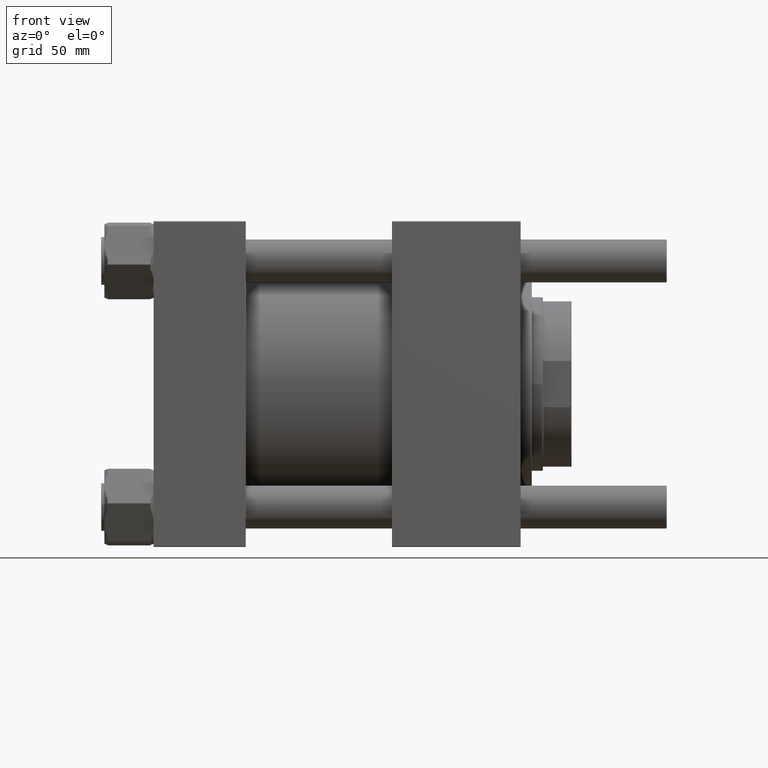
[diagram: clean part render]
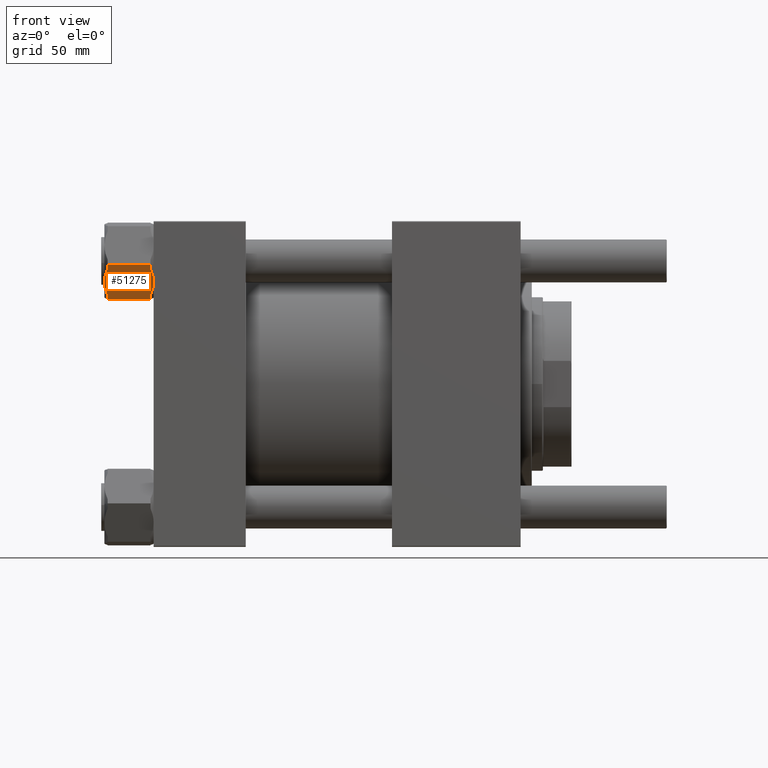
[diagram: same view with one face highlighted and labeled with its STEP entity id]
A machine part, front view. The second image highlights one B-rep face of the part: STEP entity #51275.
In plain terms, the highlighted planar face has unit normal (-0, 0.8198, 0.5726).
Its self-contained STEP definition (entity closure, byte-faithful):
#153 = LINE ( 'NONE', #8552, #7084 ) ;
#231 = ORIENTED_EDGE ( 'NONE', *, *, #31329, .F. ) ;
#1495 = LINE ( 'NONE', #32195, #11988 ) ;
#2269 = VECTOR ( 'NONE', #38551, 1000.000000000000000 ) ;
#2427 = ORIENTED_EDGE ( 'NONE', *, *, #47066, .F. ) ;
#3409 = CARTESIAN_POINT ( 'NONE',  ( -24.86944657925254987, 3.032047466098102273, -28.99999999999999645 ) ) ;
#3425 = CARTESIAN_POINT ( 'NONE',  ( -15.06055342074746939, 20.02154878264365934, -2.000000000000000000 ) ) ;
#4291 = CARTESIAN_POINT ( 'NONE',  ( -18.28415441059626545, 14.43810808489622843, -0.2290702059543288927 ) ) ;
#4368 = VERTEX_POINT ( 'NONE', #55897 ) ;
#7084 = VECTOR ( 'NONE', #43337, 1000.000000000000000 ) ;
#7114 = VECTOR ( 'NONE', #38873, 1000.000000000000000 ) ;
#8059 = ORIENTED_EDGE ( 'NONE', *, *, #40260, .F. ) ;
#8552 = CARTESIAN_POINT ( 'NONE',  ( -13.30999999999999872, 23.05359624874177271, -31.00000000000000000 ) ) ;
#8721 = CARTESIAN_POINT ( 'NONE',  ( -19.96500000000001052, 11.52679812437088636, -31.00000000000000000 ) ) ;
#8726 = VECTOR ( 'NONE', #16842, 1000.000000000000000 ) ;
#9002 = CARTESIAN_POINT ( 'NONE',  ( -16.65815586667607207, 17.25442017599902655, -30.08229428973084651 ) ) ;
#9265 = ORIENTED_EDGE ( 'NONE', *, *, #51816, .F. ) ;
#9367 = ORIENTED_EDGE ( 'NONE', *, *, #38356, .F. ) ;
#9415 = VERTEX_POINT ( 'NONE', #39953 ) ;
#10190 = CARTESIAN_POINT ( 'NONE',  ( -24.86944657925254987, 3.032047466098102273, -28.99999999999999645 ) ) ;
#10730 = VERTEX_POINT ( 'NONE', #21581 ) ;
#10811 = EDGE_CURVE ( 'NONE', #34437, #33070, #48134, .T. ) ;
#10819 = B_SPLINE_CURVE_WITH_KNOTS ( 'NONE', 3,
 ( #3409, #29490, #47159, #43107, #50924, #38753, #41969, #46308, #37619, #55542 ),
 .UNSPECIFIED., .F., .F.,
 ( 4, 2, 2, 2, 4 ),
 ( 5.412492187535934886E-07, 0.005006446827219874531, 0.007509399616220437459, 0.008760876010720718490, 0.01001235240522100126 ),
 .UNSPECIFIED. ) ;
#11988 = VECTOR ( 'NONE', #49855, 1000.000000000000000 ) ;
#14182 = CARTESIAN_POINT ( 'NONE',  ( -21.64175213325208347, 8.622578237878784080, -0.1878618656617418170 ) ) ;
#16816 = AXIS2_PLACEMENT_3D ( 'NONE', #33961, #20905, #38587 ) ;
#16842 = DIRECTION ( 'NONE',  ( -0.000000000000000000, -0.000000000000000000, 1.000000000000000000 ) ) ;
#17161 = EDGE_CURVE ( 'NONE', #26188, #33555, #153, .T. ) ;
#17288 = CARTESIAN_POINT ( 'NONE',  ( -13.30999999999999872, 23.05359624874177271, -2.000000000000001776 ) ) ;
#17599 = CARTESIAN_POINT ( 'NONE',  ( -16.64769565855988276, 17.27253778791400052, -0.8826024950750006592 ) ) ;
#18243 = CARTESIAN_POINT ( 'NONE',  ( -19.96500000000001407, 11.52679812437088813, 0.000000000000000000 ) ) ;
#18548 = EDGE_CURVE ( 'NONE', #10730, #26188, #55056, .T. ) ;
#18828 = EDGE_CURVE ( 'NONE', #52322, #31118, #23313, .T. ) ;
#19445 = B_SPLINE_CURVE_WITH_KNOTS ( 'NONE', 3,
 ( #8721, #30468, #48133, #44086, #9002, #34814, #39154, #26689 ),
 .UNSPECIFIED., .F., .F.,
 ( 4, 2, 2, 4 ),
 ( 0.01001235240522100126, 0.01501505178013392769, 0.01751640146759038397, 0.02001775115504684371 ),
 .UNSPECIFIED. ) ;
#20873 = ORIENTED_EDGE ( 'NONE', *, *, #17161, .F. ) ;
#20905 = DIRECTION ( 'NONE',  ( 0.8660254037844385966, -0.5000000000000001110, 0.000000000000000000 ) ) ;
#20910 = LINE ( 'NONE', #21199, #7114 ) ;
#21199 = CARTESIAN_POINT ( 'NONE',  ( -26.62000000000000455, 1.322753825639812332E-14, -28.99999999999999645 ) ) ;
#21581 = CARTESIAN_POINT ( 'NONE',  ( -15.06055342074746584, 20.02154878264366644, -28.99999999999999645 ) ) ;
#22129 = CARTESIAN_POINT ( 'NONE',  ( -24.86944657925254631, 3.032047466098111155, -2.000000000000000000 ) ) ;
#23313 = B_SPLINE_CURVE_WITH_KNOTS ( 'NONE', 3,
 ( #18243, #40558, #14182, #36214, #31867, #49534, #27514, #45194 ),
 .UNSPECIFIED., .F., .F.,
 ( 4, 2, 2, 4 ),
 ( 0.01001235240522100993, 0.01501505178013393463, 0.01751640146759039091, 0.02001775115504685065 ),
 .UNSPECIFIED. ) ;
#24343 = CARTESIAN_POINT ( 'NONE',  ( -26.62000000000000455, 1.322753825639812332E-14, -2.000000000000001776 ) ) ;
#24778 = LINE ( 'NONE', #55168, #47351 ) ;
#24975 = FACE_OUTER_BOUND ( 'NONE', #36950, .T. ) ;
#26188 = VERTEX_POINT ( 'NONE', #36533 ) ;
#26596 = CARTESIAN_POINT ( 'NONE',  ( -19.96500000000001407, 11.52679812437088813, 0.000000000000000000 ) ) ;
#26689 = CARTESIAN_POINT ( 'NONE',  ( -15.06055342074746584, 20.02154878264366644, -28.99999999999999645 ) ) ;
#27514 = CARTESIAN_POINT ( 'NONE',  ( -24.47560625466582707, 3.714198918351719225, -1.691610128380186540 ) ) ;
#29490 = CARTESIAN_POINT ( 'NONE',  ( -24.08202856253745594, 4.395895477843756893, -29.61657409342405600 ) ) ;
#30308 = ORIENTED_EDGE ( 'NONE', *, *, #18828, .F. ) ;
#30468 = CARTESIAN_POINT ( 'NONE',  ( -19.11853726258805963, 12.99291459228222045, -31.00000000000002487 ) ) ;
#31118 = VERTEX_POINT ( 'NONE', #22129 ) ;
#31329 = EDGE_CURVE ( 'NONE', #34437, #47864, #20910, .T. ) ;
#31867 = CARTESIAN_POINT ( 'NONE',  ( -23.27184413332395252, 5.799176072742751487, -0.9177057102691522639 ) ) ;
#32195 = CARTESIAN_POINT ( 'NONE',  ( -26.62000000000000455, 1.322753825639812332E-14, -2.000000000000001776 ) ) ;
#32844 = EDGE_CURVE ( 'NONE', #4368, #10730, #19445, .T. ) ;
#33070 = VERTEX_POINT ( 'NONE', #24343 ) ;
#33370 = ORIENTED_EDGE ( 'NONE', *, *, #10811, .T. ) ;
#33555 = VERTEX_POINT ( 'NONE', #17288 ) ;
#33961 = CARTESIAN_POINT ( 'NONE',  ( -26.62000000000000455, 1.322753825639812332E-14, -31.00000000000000000 ) ) ;
#34437 = VERTEX_POINT ( 'NONE', #55809 ) ;
#34814 = CARTESIAN_POINT ( 'NONE',  ( -15.85409835805183931, 18.64708863314343645, -29.58973526236486862 ) ) ;
#36214 = CARTESIAN_POINT ( 'NONE',  ( -22.86684697778494524, 6.500651723057158549, -0.7059057375046260407 ) ) ;
#36533 = CARTESIAN_POINT ( 'NONE',  ( -13.30999999999999872, 23.05359624874177271, -28.99999999999999645 ) ) ;
#36950 = EDGE_LOOP ( 'NONE', ( #231, #33370, #9265, #30308, #2427, #8059, #20873, #51346, #51406, #9367 ) ) ;
#37619 = CARTESIAN_POINT ( 'NONE',  ( -20.17675130770547653, 11.16003410085586367, -31.00000000000001421 ) ) ;
#38356 = EDGE_CURVE ( 'NONE', #47864, #4368, #10819, .T. ) ;
#38551 = DIRECTION ( 'NONE',  ( 0.5000000000000001110, 0.8660254037844385966, 0.000000000000000000 ) ) ;
#38587 = DIRECTION ( 'NONE',  ( 0.5000000000000001110, 0.8660254037844385966, 0.000000000000000000 ) ) ;
#38753 = CARTESIAN_POINT ( 'NONE',  ( -21.02060996173662843, 9.698428037667218504, -30.90723860914735965 ) ) ;
#38873 = DIRECTION ( 'NONE',  ( 0.5000000000000001110, 0.8660254037844385966, 0.000000000000000000 ) ) ;
#39154 = CARTESIAN_POINT ( 'NONE',  ( -15.45439374533418864, 19.33939733039004238, -29.30838987161981635 ) ) ;
#39155 = CARTESIAN_POINT ( 'NONE',  ( -26.62000000000000455, 1.322753825639812332E-14, -31.00000000000000000 ) ) ;
#39636 = CARTESIAN_POINT ( 'NONE',  ( -17.87195049697045590, 15.15206620637487589, -0.3633963927283482831 ) ) ;
#39913 = CARTESIAN_POINT ( 'NONE',  ( -19.11895617587299867, 12.99218901318872810, -0.05818196640765550126 ) ) ;
#39953 = CARTESIAN_POINT ( 'NONE',  ( -15.06055342074746939, 20.02154878264365934, -2.000000000000000000 ) ) ;
#40260 = EDGE_CURVE ( 'NONE', #33555, #9415, #1495, .T. ) ;
#40558 = CARTESIAN_POINT ( 'NONE',  ( -20.81146273741195785, 10.06068165645955226, 1.890577538271597726E-14 ) ) ;
#41881 = DIRECTION ( 'NONE',  ( -0.5000000000000001110, -0.8660254037844385966, 0.000000000000000000 ) ) ;
#41969 = CARTESIAN_POINT ( 'NONE',  ( -20.81104382412701526, 10.06140723555304106, -30.94181803359234451 ) ) ;
#43107 = CARTESIAN_POINT ( 'NONE',  ( -22.05804950302956513, 7.901530042366891493, -30.63660360727163834 ) ) ;
#43124 = CARTESIAN_POINT ( 'NONE',  ( -18.90939003826338549, 13.35516821107455065, -0.09276139085263405970 ) ) ;
#43337 = DIRECTION ( 'NONE',  ( -0.000000000000000000, -0.000000000000000000, 1.000000000000000000 ) ) ;
#43989 = CARTESIAN_POINT ( 'NONE',  ( -19.54050862441265224, 12.26203875426299383, -0.01178697739765525998 ) ) ;
#44086 = CARTESIAN_POINT ( 'NONE',  ( -17.06315302221505448, 16.55294452568460883, -30.29409426249536352 ) ) ;
#45194 = CARTESIAN_POINT ( 'NONE',  ( -24.86944657925254631, 3.032047466098111155, -2.000000000000000000 ) ) ;
#46308 = CARTESIAN_POINT ( 'NONE',  ( -20.38949137558736524, 10.79155749447877177, -30.98821302260233779 ) ) ;
#46365 = CARTESIAN_POINT ( 'NONE',  ( -19.96500000000001407, 11.52679812437088813, 0.000000000000000000 ) ) ;
#47066 = EDGE_CURVE ( 'NONE', #9415, #52322, #47129, .T. ) ;
#47129 = B_SPLINE_CURVE_WITH_KNOTS ( 'NONE', 3,
 ( #3425, #52379, #17599, #39636, #4291, #43124, #39913, #43989, #53230, #26596 ),
 .UNSPECIFIED., .F., .F.,
 ( 4, 2, 2, 2, 4 ),
 ( 5.412492187693073262E-07, 0.005006446827219892745, 0.007509399616220453939, 0.008760876010720730633, 0.01001235240522100993 ),
 .UNSPECIFIED. ) ;
#47159 = CARTESIAN_POINT ( 'NONE',  ( -23.28230434144012762, 5.781058460827763312, -30.11739750492498402 ) ) ;
#47351 = VECTOR ( 'NONE', #41881, 1000.000000000000000 ) ;
#47864 = VERTEX_POINT ( 'NONE', #10190 ) ;
#48133 = CARTESIAN_POINT ( 'NONE',  ( -18.28824786674792691, 14.43101801086298330, -30.81213813433825166 ) ) ;
#48134 = LINE ( 'NONE', #39155, #8726 ) ;
#49534 = CARTESIAN_POINT ( 'NONE',  ( -24.07590164194817106, 4.406507615598335370, -1.410264737635125831 ) ) ;
#49855 = DIRECTION ( 'NONE',  ( -0.5000000000000001110, -0.8660254037844385966, 0.000000000000000000 ) ) ;
#50924 = CARTESIAN_POINT ( 'NONE',  ( -21.64584558940375913, 8.615488163845546055, -30.77092979404567430 ) ) ;
#51275 = ADVANCED_FACE ( 'NONE', ( #24975 ), #55942, .F. ) ;
#51346 = ORIENTED_EDGE ( 'NONE', *, *, #18548, .F. ) ;
#51406 = ORIENTED_EDGE ( 'NONE', *, *, #32844, .F. ) ;
#51583 = CARTESIAN_POINT ( 'NONE',  ( -26.62000000000000455, 1.322753825639812332E-14, -28.99999999999999645 ) ) ;
#51816 = EDGE_CURVE ( 'NONE', #31118, #33070, #24778, .T. ) ;
#52322 = VERTEX_POINT ( 'NONE', #46365 ) ;
#52379 = CARTESIAN_POINT ( 'NONE',  ( -15.84797143746255443, 18.65770077089800694, -1.383425906575934228 ) ) ;
#53230 = CARTESIAN_POINT ( 'NONE',  ( -19.75324869229453739, 11.89356214788591259, 1.924835315249438913E-14 ) ) ;
#55056 = LINE ( 'NONE', #51583, #2269 ) ;
#55168 = CARTESIAN_POINT ( 'NONE',  ( -26.62000000000000455, 1.322753825639812332E-14, -2.000000000000001776 ) ) ;
#55542 = CARTESIAN_POINT ( 'NONE',  ( -19.96500000000001052, 11.52679812437088636, -31.00000000000000000 ) ) ;
#55809 = CARTESIAN_POINT ( 'NONE',  ( -26.62000000000000455, 1.322753825639812332E-14, -28.99999999999999645 ) ) ;
#55897 = CARTESIAN_POINT ( 'NONE',  ( -19.96500000000001052, 11.52679812437088636, -31.00000000000000000 ) ) ;
#55942 = PLANE ( 'NONE',  #16816 ) ;